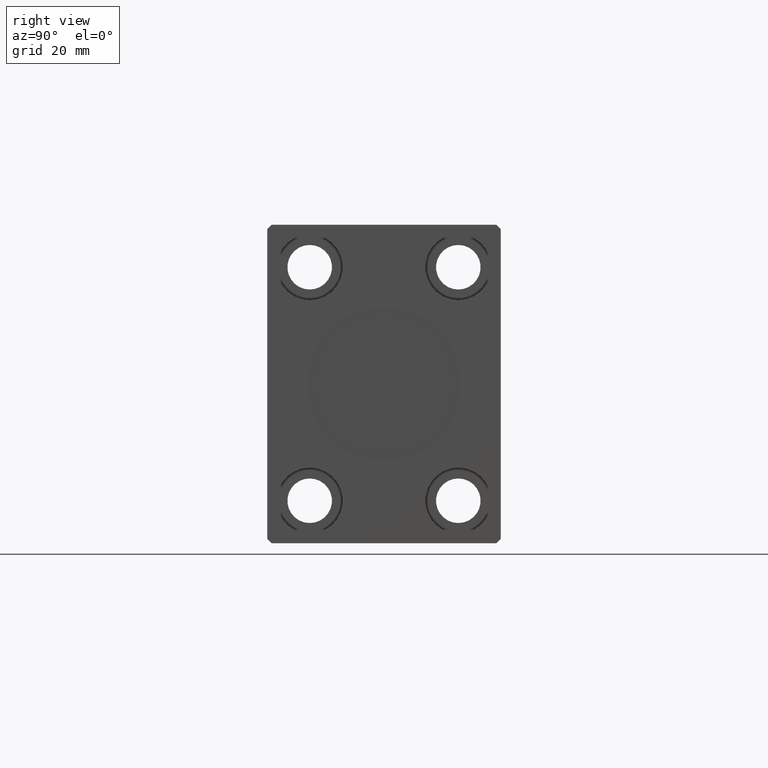
[diagram: clean part render]
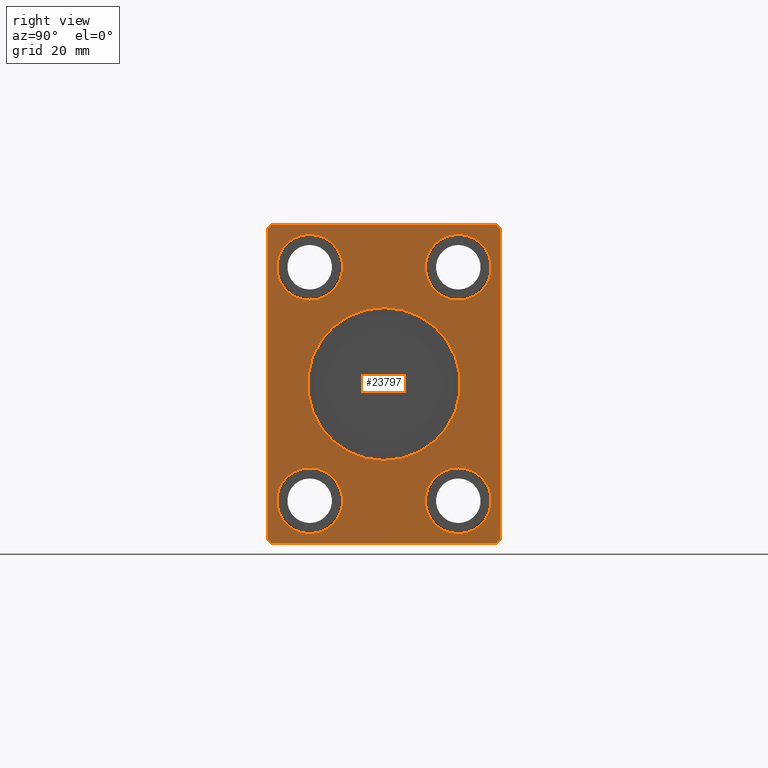
[diagram: same view with one face highlighted and labeled with its STEP entity id]
A machine part, right view. The second image highlights one B-rep face of the part: STEP entity #23797.
In plain terms, the highlighted planar face has unit normal (1, 0, 0).
Its self-contained STEP definition (entity closure, byte-faithful):
#46 = CIRCLE ( 'NONE', #734, 7.750000000000003553 ) ;
#123 = DIRECTION ( 'NONE',  ( -1.000000000000000000, -0.000000000000000000, -0.000000000000000000 ) ) ;
#195 = CARTESIAN_POINT ( 'NONE',  ( 145.0000000000000000, 17.50000000000000000, -19.74999999999999645 ) ) ;
#697 = DIRECTION ( 'NONE',  ( 0.000000000000000000, 1.000000000000000000, 0.000000000000000000 ) ) ;
#734 = AXIS2_PLACEMENT_3D ( 'NONE', #9598, #13673, #3752 ) ;
#866 = FACE_OUTER_BOUND ( 'NONE', #18287, .T. ) ;
#1444 = AXIS2_PLACEMENT_3D ( 'NONE', #26477, #29920, #23452 ) ;
#1616 = VERTEX_POINT ( 'NONE', #19717 ) ;
#1671 = CARTESIAN_POINT ( 'NONE',  ( 145.0000000000000000, 26.50000000000000355, 37.50000000000000711 ) ) ;
#1889 = VECTOR ( 'NONE', #10450, 1000.000000000000114 ) ;
#2258 = AXIS2_PLACEMENT_3D ( 'NONE', #16765, #30530, #6857 ) ;
#2273 = ORIENTED_EDGE ( 'NONE', *, *, #27479, .F. ) ;
#2283 = CARTESIAN_POINT ( 'NONE',  ( 145.0000000000000000, 0.000000000000000000, 0.000000000000000000 ) ) ;
#2823 = CARTESIAN_POINT ( 'NONE',  ( 145.0000000000000000, -26.50000000000000711, 37.50000000000000711 ) ) ;
#3133 = DIRECTION ( 'NONE',  ( 1.000000000000000000, -0.000000000000000000, -0.000000000000000000 ) ) ;
#3752 = DIRECTION ( 'NONE',  ( 0.000000000000000000, 0.000000000000000000, 1.000000000000000000 ) ) ;
#3756 = LINE ( 'NONE', #7419, #1889 ) ;
#3851 = LINE ( 'NONE', #39647, #33443 ) ;
#3875 = CARTESIAN_POINT ( 'NONE',  ( 145.0000000000000000, -27.50000000000000355, -36.49999999999998579 ) ) ;
#4335 = EDGE_LOOP ( 'NONE', ( #25423, #36151 ) ) ;
#5294 = EDGE_CURVE ( 'NONE', #37654, #36945, #15452, .T. ) ;
#6041 = EDGE_CURVE ( 'NONE', #37730, #25664, #38647, .T. ) ;
#6258 = VECTOR ( 'NONE', #41735, 1000.000000000000000 ) ;
#6406 = CARTESIAN_POINT ( 'NONE',  ( 145.0000000000000000, 27.50000000000000355, 36.50000000000000711 ) ) ;
#6857 = DIRECTION ( 'NONE',  ( 0.000000000000000000, 0.000000000000000000, -1.000000000000000000 ) ) ;
#7128 = CARTESIAN_POINT ( 'NONE',  ( 145.0000000000000000, -27.50000000000000355, -36.49999999999998579 ) ) ;
#7328 = VERTEX_POINT ( 'NONE', #28066 ) ;
#7332 = DIRECTION ( 'NONE',  ( 0.000000000000000000, 0.7071067811865451302, -0.7071067811865500152 ) ) ;
#7354 = FACE_BOUND ( 'NONE', #4335, .T. ) ;
#7419 = CARTESIAN_POINT ( 'NONE',  ( 145.0000000000000000, -26.50000000000000711, 37.50000000000000711 ) ) ;
#7574 = VECTOR ( 'NONE', #32329, 1000.000000000000000 ) ;
#7656 = CARTESIAN_POINT ( 'NONE',  ( 145.0000000000000000, 17.50000000000000000, 27.50000000000000000 ) ) ;
#7802 = LINE ( 'NONE', #40975, #36213 ) ;
#7910 = CARTESIAN_POINT ( 'NONE',  ( 145.0000000000000000, -17.50000000000000000, -19.74999999999999645 ) ) ;
#8373 = LINE ( 'NONE', #1671, #29394 ) ;
#8547 = EDGE_CURVE ( 'NONE', #18992, #16464, #15532, .T. ) ;
#8642 = CARTESIAN_POINT ( 'NONE',  ( 145.0000000000000000, 0.000000000000000000, -18.00000000000000000 ) ) ;
#9154 = ORIENTED_EDGE ( 'NONE', *, *, #8547, .T. ) ;
#9285 = EDGE_CURVE ( 'NONE', #25664, #37730, #46, .T. ) ;
#9409 = DIRECTION ( 'NONE',  ( 0.000000000000000000, 0.000000000000000000, -1.000000000000000000 ) ) ;
#9598 = CARTESIAN_POINT ( 'NONE',  ( 145.0000000000000000, 17.50000000000000000, -27.50000000000000000 ) ) ;
#9619 = DIRECTION ( 'NONE',  ( 0.000000000000000000, 0.000000000000000000, 1.000000000000000000 ) ) ;
#9918 = VERTEX_POINT ( 'NONE', #14953 ) ;
#10280 = ORIENTED_EDGE ( 'NONE', *, *, #5294, .T. ) ;
#10450 = DIRECTION ( 'NONE',  ( 0.000000000000000000, -0.7071067811865474617, -0.7071067811865474617 ) ) ;
#10840 = EDGE_CURVE ( 'NONE', #21182, #39080, #30364, .T. ) ;
#10998 = PLANE ( 'NONE',  #14035 ) ;
#11213 = ORIENTED_EDGE ( 'NONE', *, *, #15879, .F. ) ;
#11740 = CARTESIAN_POINT ( 'NONE',  ( 145.0000000000000000, -17.50000000000000000, 27.50000000000000000 ) ) ;
#12306 = ORIENTED_EDGE ( 'NONE', *, *, #30601, .T. ) ;
#12975 = EDGE_CURVE ( 'NONE', #16464, #22989, #36853, .T. ) ;
#13083 = DIRECTION ( 'NONE',  ( 1.000000000000000000, -0.000000000000000000, -0.000000000000000000 ) ) ;
#13258 = ORIENTED_EDGE ( 'NONE', *, *, #33375, .T. ) ;
#13424 = CIRCLE ( 'NONE', #37491, 7.750000000000003553 ) ;
#13504 = LINE ( 'NONE', #6406, #14149 ) ;
#13673 = DIRECTION ( 'NONE',  ( -1.000000000000000000, -0.000000000000000000, -0.000000000000000000 ) ) ;
#13960 = CARTESIAN_POINT ( 'NONE',  ( 145.0000000000000000, 17.50000000000000000, 35.25000000000000000 ) ) ;
#14035 = AXIS2_PLACEMENT_3D ( 'NONE', #20487, #36877, #23517 ) ;
#14149 = VECTOR ( 'NONE', #26007, 1000.000000000000114 ) ;
#14917 = CIRCLE ( 'NONE', #17633, 7.750000000000003553 ) ;
#14953 = CARTESIAN_POINT ( 'NONE',  ( 145.0000000000000000, -17.50000000000000000, -35.25000000000000000 ) ) ;
#15452 = LINE ( 'NONE', #28594, #6258 ) ;
#15532 = LINE ( 'NONE', #18765, #7574 ) ;
#15785 = ORIENTED_EDGE ( 'NONE', *, *, #6041, .T. ) ;
#15879 = EDGE_CURVE ( 'NONE', #9918, #36846, #22900, .T. ) ;
#15920 = CARTESIAN_POINT ( 'NONE',  ( 145.0000000000000000, 26.50000000000000355, 37.50000000000000711 ) ) ;
#16037 = CARTESIAN_POINT ( 'NONE',  ( 145.0000000000000000, 0.000000000000000000, 0.000000000000000000 ) ) ;
#16325 = EDGE_LOOP ( 'NONE', ( #2273, #33743 ) ) ;
#16464 = VERTEX_POINT ( 'NONE', #7128 ) ;
#16765 = CARTESIAN_POINT ( 'NONE',  ( 145.0000000000000000, -17.50000000000000000, -27.50000000000000000 ) ) ;
#16793 = DIRECTION ( 'NONE',  ( 0.000000000000000000, 0.7071067811865474617, 0.7071067811865474617 ) ) ;
#17077 = ORIENTED_EDGE ( 'NONE', *, *, #28941, .T. ) ;
#17551 = CIRCLE ( 'NONE', #25820, 18.00000000000000000 ) ;
#17633 = AXIS2_PLACEMENT_3D ( 'NONE', #42599, #13083, #35720 ) ;
#17762 = DIRECTION ( 'NONE',  ( 1.000000000000000000, -0.000000000000000000, -0.000000000000000000 ) ) ;
#18287 = EDGE_LOOP ( 'NONE', ( #17077, #13258, #29216, #9154, #24687, #22004, #12306, #10280 ) ) ;
#18378 = CARTESIAN_POINT ( 'NONE',  ( 145.0000000000000000, -17.50000000000000000, 19.74999999999999645 ) ) ;
#18414 = DIRECTION ( 'NONE',  ( -1.000000000000000000, -0.000000000000000000, -0.000000000000000000 ) ) ;
#18675 = VERTEX_POINT ( 'NONE', #15920 ) ;
#18765 = CARTESIAN_POINT ( 'NONE',  ( 145.0000000000000000, -27.50000000000000711, 36.50000000000000711 ) ) ;
#18992 = VERTEX_POINT ( 'NONE', #38288 ) ;
#19717 = CARTESIAN_POINT ( 'NONE',  ( 145.0000000000000000, 2.204364238465235428E-15, 18.00000000000000000 ) ) ;
#20184 = ORIENTED_EDGE ( 'NONE', *, *, #9285, .T. ) ;
#20487 = CARTESIAN_POINT ( 'NONE',  ( 145.0000000000000000, 0.000000000000000000, 0.000000000000000000 ) ) ;
#20501 = VERTEX_POINT ( 'NONE', #33895 ) ;
#21182 = VERTEX_POINT ( 'NONE', #18378 ) ;
#21441 = VECTOR ( 'NONE', #7332, 1000.000000000000114 ) ;
#21496 = VERTEX_POINT ( 'NONE', #8642 ) ;
#22004 = ORIENTED_EDGE ( 'NONE', *, *, #36599, .T. ) ;
#22514 = EDGE_LOOP ( 'NONE', ( #42042, #29892 ) ) ;
#22900 = CIRCLE ( 'NONE', #2258, 7.750000000000003553 ) ;
#22989 = VERTEX_POINT ( 'NONE', #31950 ) ;
#23452 = DIRECTION ( 'NONE',  ( 0.000000000000000000, 0.000000000000000000, 1.000000000000000000 ) ) ;
#23517 = DIRECTION ( 'NONE',  ( 0.000000000000000000, 0.000000000000000000, -1.000000000000000000 ) ) ;
#23797 = ADVANCED_FACE ( 'NONE', ( #26544, #7354, #33223, #866, #40509, #33634 ), #10998, .T. ) ;
#23932 = AXIS2_PLACEMENT_3D ( 'NONE', #2283, #31821, #41296 ) ;
#24471 = AXIS2_PLACEMENT_3D ( 'NONE', #42575, #3133, #9409 ) ;
#24687 = ORIENTED_EDGE ( 'NONE', *, *, #12975, .T. ) ;
#25056 = EDGE_LOOP ( 'NONE', ( #20184, #15785 ) ) ;
#25423 = ORIENTED_EDGE ( 'NONE', *, *, #10840, .T. ) ;
#25664 = VERTEX_POINT ( 'NONE', #26774 ) ;
#25820 = AXIS2_PLACEMENT_3D ( 'NONE', #16037, #42324, #39091 ) ;
#26007 = DIRECTION ( 'NONE',  ( 0.000000000000000000, -0.7071067811865474617, 0.7071067811865474617 ) ) ;
#26231 = ORIENTED_EDGE ( 'NONE', *, *, #34649, .F. ) ;
#26477 = CARTESIAN_POINT ( 'NONE',  ( 145.0000000000000000, 17.50000000000000000, -27.50000000000000000 ) ) ;
#26544 = FACE_BOUND ( 'NONE', #16325, .T. ) ;
#26774 = CARTESIAN_POINT ( 'NONE',  ( 145.0000000000000000, 17.50000000000000000, -35.25000000000000000 ) ) ;
#26933 = AXIS2_PLACEMENT_3D ( 'NONE', #29650, #123, #9619 ) ;
#27479 = EDGE_CURVE ( 'NONE', #21496, #1616, #17551, .T. ) ;
#28066 = CARTESIAN_POINT ( 'NONE',  ( 145.0000000000000000, 17.50000000000000000, 19.74999999999999645 ) ) ;
#28362 = EDGE_CURVE ( 'NONE', #39080, #21182, #13424, .T. ) ;
#28594 = CARTESIAN_POINT ( 'NONE',  ( 145.0000000000000000, 27.50000000000000711, -36.49999999999999289 ) ) ;
#28941 = EDGE_CURVE ( 'NONE', #36945, #18675, #13504, .T. ) ;
#29010 = EDGE_CURVE ( 'NONE', #7328, #36005, #31355, .T. ) ;
#29216 = ORIENTED_EDGE ( 'NONE', *, *, #40162, .T. ) ;
#29330 = CIRCLE ( 'NONE', #24471, 7.750000000000003553 ) ;
#29394 = VECTOR ( 'NONE', #37890, 1000.000000000000000 ) ;
#29650 = CARTESIAN_POINT ( 'NONE',  ( 145.0000000000000000, -17.50000000000000000, 27.50000000000000000 ) ) ;
#29892 = ORIENTED_EDGE ( 'NONE', *, *, #38259, .F. ) ;
#29920 = DIRECTION ( 'NONE',  ( -1.000000000000000000, -0.000000000000000000, -0.000000000000000000 ) ) ;
#30364 = CIRCLE ( 'NONE', #26933, 7.750000000000003553 ) ;
#30530 = DIRECTION ( 'NONE',  ( 1.000000000000000000, -0.000000000000000000, -0.000000000000000000 ) ) ;
#30601 = EDGE_CURVE ( 'NONE', #20501, #37654, #3851, .T. ) ;
#30810 = CARTESIAN_POINT ( 'NONE',  ( 145.0000000000000000, 27.50000000000000711, -36.49999999999999289 ) ) ;
#31090 = VERTEX_POINT ( 'NONE', #2823 ) ;
#31355 = CIRCLE ( 'NONE', #37517, 7.750000000000003553 ) ;
#31566 = DIRECTION ( 'NONE',  ( 0.000000000000000000, 0.000000000000000000, 1.000000000000000000 ) ) ;
#31821 = DIRECTION ( 'NONE',  ( 1.000000000000000000, 0.000000000000000000, 0.000000000000000000 ) ) ;
#31950 = CARTESIAN_POINT ( 'NONE',  ( 145.0000000000000000, -26.50000000000000355, -37.49999999999999289 ) ) ;
#32194 = CIRCLE ( 'NONE', #23932, 18.00000000000000000 ) ;
#32329 = DIRECTION ( 'NONE',  ( 0.000000000000000000, 4.752667057470705491E-17, -1.000000000000000000 ) ) ;
#33223 = FACE_BOUND ( 'NONE', #25056, .T. ) ;
#33225 = EDGE_LOOP ( 'NONE', ( #11213, #26231 ) ) ;
#33375 = EDGE_CURVE ( 'NONE', #18675, #31090, #8373, .T. ) ;
#33443 = VECTOR ( 'NONE', #16793, 1000.000000000000114 ) ;
#33634 = FACE_BOUND ( 'NONE', #22514, .T. ) ;
#33743 = ORIENTED_EDGE ( 'NONE', *, *, #40871, .F. ) ;
#33895 = CARTESIAN_POINT ( 'NONE',  ( 145.0000000000000000, 26.50000000000000711, -37.49999999999999289 ) ) ;
#34649 = EDGE_CURVE ( 'NONE', #36846, #9918, #29330, .T. ) ;
#35507 = CARTESIAN_POINT ( 'NONE',  ( 145.0000000000000000, 27.50000000000000355, 36.50000000000000711 ) ) ;
#35720 = DIRECTION ( 'NONE',  ( 0.000000000000000000, 0.000000000000000000, -1.000000000000000000 ) ) ;
#36005 = VERTEX_POINT ( 'NONE', #13960 ) ;
#36151 = ORIENTED_EDGE ( 'NONE', *, *, #28362, .T. ) ;
#36213 = VECTOR ( 'NONE', #697, 1000.000000000000000 ) ;
#36599 = EDGE_CURVE ( 'NONE', #22989, #20501, #7802, .T. ) ;
#36766 = DIRECTION ( 'NONE',  ( 0.000000000000000000, 0.000000000000000000, -1.000000000000000000 ) ) ;
#36846 = VERTEX_POINT ( 'NONE', #7910 ) ;
#36853 = LINE ( 'NONE', #3875, #21441 ) ;
#36877 = DIRECTION ( 'NONE',  ( 1.000000000000000000, 0.000000000000000000, 0.000000000000000000 ) ) ;
#36945 = VERTEX_POINT ( 'NONE', #35507 ) ;
#37491 = AXIS2_PLACEMENT_3D ( 'NONE', #11740, #18414, #31566 ) ;
#37517 = AXIS2_PLACEMENT_3D ( 'NONE', #7656, #17762, #36766 ) ;
#37654 = VERTEX_POINT ( 'NONE', #30810 ) ;
#37730 = VERTEX_POINT ( 'NONE', #195 ) ;
#37890 = DIRECTION ( 'NONE',  ( 0.000000000000000000, -1.000000000000000000, 0.000000000000000000 ) ) ;
#38259 = EDGE_CURVE ( 'NONE', #36005, #7328, #14917, .T. ) ;
#38288 = CARTESIAN_POINT ( 'NONE',  ( 145.0000000000000000, -27.50000000000000711, 36.50000000000000711 ) ) ;
#38647 = CIRCLE ( 'NONE', #1444, 7.750000000000003553 ) ;
#38955 = CARTESIAN_POINT ( 'NONE',  ( 145.0000000000000000, -17.50000000000000000, 35.25000000000000000 ) ) ;
#39080 = VERTEX_POINT ( 'NONE', #38955 ) ;
#39091 = DIRECTION ( 'NONE',  ( 0.000000000000000000, 0.000000000000000000, -1.000000000000000000 ) ) ;
#39647 = CARTESIAN_POINT ( 'NONE',  ( 145.0000000000000000, 26.50000000000000711, -37.49999999999999289 ) ) ;
#40162 = EDGE_CURVE ( 'NONE', #31090, #18992, #3756, .T. ) ;
#40509 = FACE_BOUND ( 'NONE', #33225, .T. ) ;
#40871 = EDGE_CURVE ( 'NONE', #1616, #21496, #32194, .T. ) ;
#40975 = CARTESIAN_POINT ( 'NONE',  ( 145.0000000000000000, -26.50000000000000355, -37.49999999999999289 ) ) ;
#41296 = DIRECTION ( 'NONE',  ( 0.000000000000000000, 0.000000000000000000, -1.000000000000000000 ) ) ;
#41735 = DIRECTION ( 'NONE',  ( 0.000000000000000000, -4.752667057470704875E-17, 1.000000000000000000 ) ) ;
#42042 = ORIENTED_EDGE ( 'NONE', *, *, #29010, .F. ) ;
#42324 = DIRECTION ( 'NONE',  ( 1.000000000000000000, 0.000000000000000000, 0.000000000000000000 ) ) ;
#42575 = CARTESIAN_POINT ( 'NONE',  ( 145.0000000000000000, -17.50000000000000000, -27.50000000000000000 ) ) ;
#42599 = CARTESIAN_POINT ( 'NONE',  ( 145.0000000000000000, 17.50000000000000000, 27.50000000000000000 ) ) ;